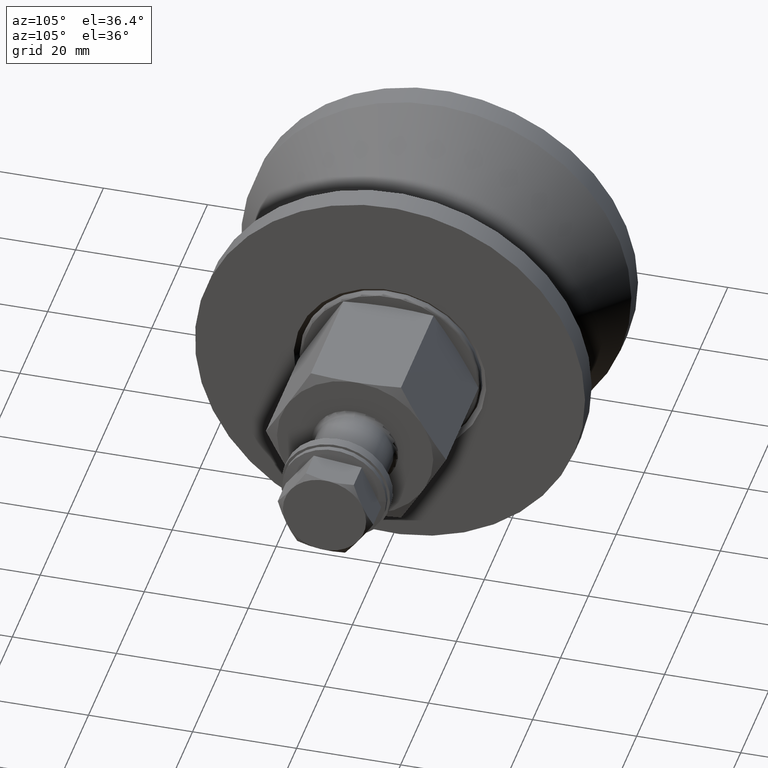
[diagram: clean part render]
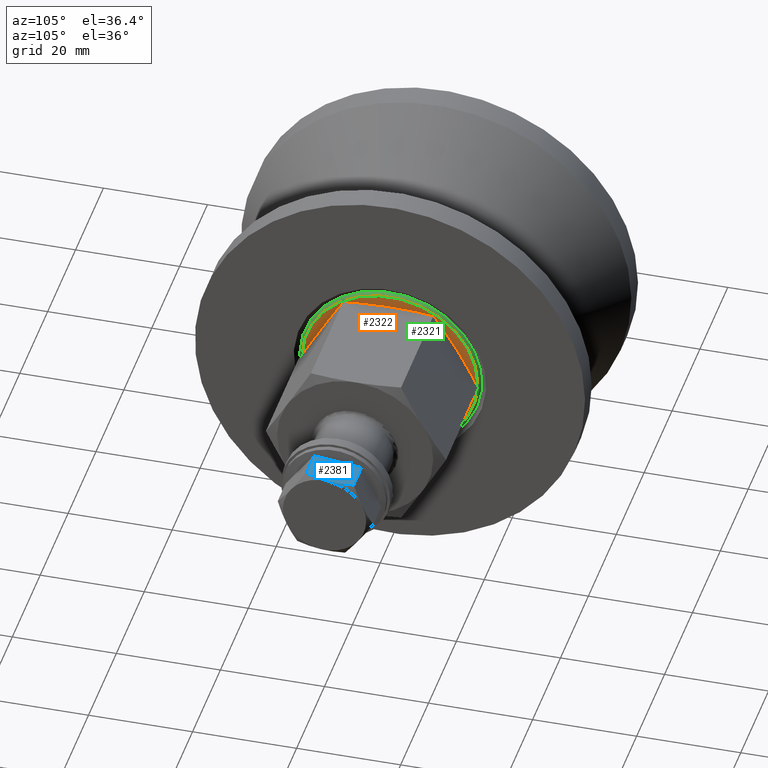
[diagram: same view with three faces highlighted in distinct colors, each labeled with its STEP entity id]
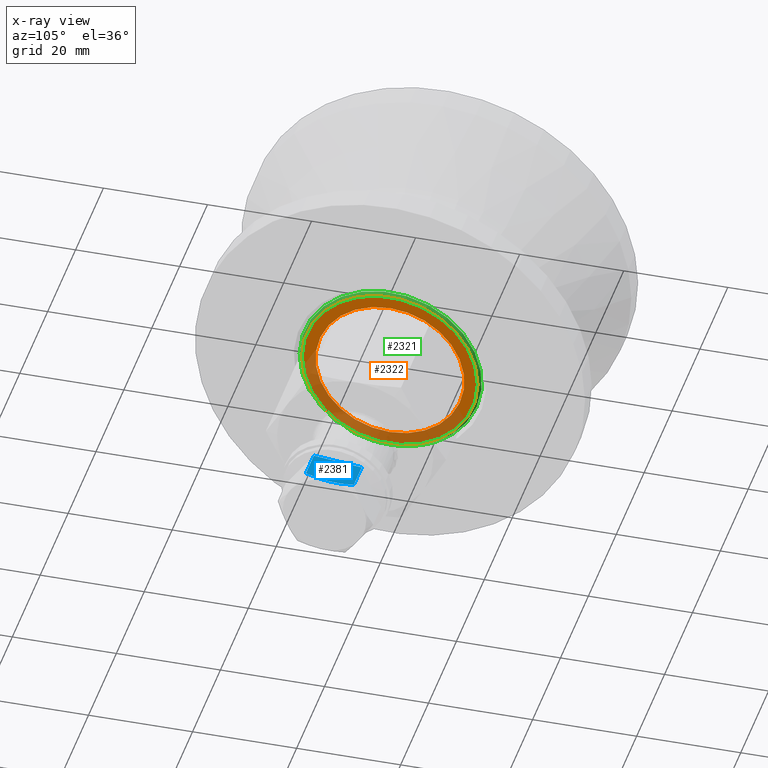
[diagram: x-ray of the same camera — body ghosted, the three highlighted faces saturated]
A machine part, auxiliary view with three faces highlighted in distinct colors.
The next image is the same camera in x-ray (body ghosted, the three faces saturated) — at least one of them is partly hidden behind the body in this view.
Their STEP definitions:

[orange] entity #2322 — the highlighted planar face has unit normal (1, -0, -0).
#246=FACE_BOUND('',#728,.T.);
#288=PLANE('',#2771);
#577=FACE_OUTER_BOUND('',#727,.T.);
#727=EDGE_LOOP('',(#1847));
#728=EDGE_LOOP('',(#1848));
#900=CIRCLE('',#2769,16.9);
#902=CIRCLE('',#2772,14.3);
#1075=VERTEX_POINT('',#4006);
#1076=VERTEX_POINT('',#4010);
#1357=EDGE_CURVE('',#1075,#1075,#900,.T.);
#1359=EDGE_CURVE('',#1076,#1076,#902,.T.);
#1847=ORIENTED_EDGE('',*,*,#1357,.F.);
#1848=ORIENTED_EDGE('',*,*,#1359,.T.);
#2322=ADVANCED_FACE('',(#577,#246),#288,.T.);
#2769=AXIS2_PLACEMENT_3D('',#4007,#3274,#3275);
#2771=AXIS2_PLACEMENT_3D('',#4009,#3278,#3279);
#2772=AXIS2_PLACEMENT_3D('',#4011,#3280,#3281);
#3274=DIRECTION('center_axis',(0.,0.,-1.));
#3275=DIRECTION('ref_axis',(-1.22464679914735E-16,-1.,0.));
#3278=DIRECTION('center_axis',(0.,0.,1.));
#3279=DIRECTION('ref_axis',(1.,0.,0.));
#3280=DIRECTION('center_axis',(0.,0.,-1.));
#3281=DIRECTION('ref_axis',(0.,1.,1.94020717204551E-16));
#4006=CARTESIAN_POINT('',(-16.9,-2.06965309055903E-15,11.));
#4007=CARTESIAN_POINT('Origin',(0.,0.,11.));
#4009=CARTESIAN_POINT('Origin',(0.,12.5,11.));
#4010=CARTESIAN_POINT('',(1.75124492278071E-15,-14.3,11.));
#4011=CARTESIAN_POINT('Origin',(0.,0.,11.));

[blue] entity #2381 — the highlighted planar face has unit normal (0, 0.1044, 0.9945).
#182=(
BOUNDED_CURVE()
B_SPLINE_CURVE(2,(#5092,#5093,#5094),.UNSPECIFIED.,.F.,.F.)
B_SPLINE_CURVE_WITH_KNOTS((3,3),(0.489016619645029,0.960077614566929),
 .UNSPECIFIED.)
CURVE()
GEOMETRIC_REPRESENTATION_ITEM()
RATIONAL_B_SPLINE_CURVE((1.,1.03945329882668,1.00289727833109))
REPRESENTATION_ITEM('')
);
#192=(
BOUNDED_CURVE()
B_SPLINE_CURVE(2,(#5142,#5143,#5144),.UNSPECIFIED.,.F.,.F.)
B_SPLINE_CURVE_WITH_KNOTS((3,3),(0.017918305379031,0.489016619645029),
 .UNSPECIFIED.)
CURVE()
GEOMETRIC_REPRESENTATION_ITEM()
RATIONAL_B_SPLINE_CURVE((1.00289148562447,1.03945642447547,1.))
REPRESENTATION_ITEM('')
);
#305=PLANE('',#2898);
#381=LINE('',#5072,#469);
#390=LINE('',#5151,#478);
#391=LINE('',#5153,#479);
#469=VECTOR('',#3522,10.);
#478=VECTOR('',#3567,10.);
#479=VECTOR('',#3570,10.);
#636=FACE_OUTER_BOUND('',#806,.T.);
#806=EDGE_LOOP('',(#2186,#2187,#2188,#2189,#2190));
#1182=VERTEX_POINT('',#5068);
#1184=VERTEX_POINT('',#5071);
#1189=VERTEX_POINT('',#5086);
#1191=VERTEX_POINT('',#5091);
#1200=VERTEX_POINT('',#5137);
#1506=EDGE_CURVE('',#1184,#1182,#381,.T.);
#1514=EDGE_CURVE('',#1191,#1189,#182,.T.);
#1530=EDGE_CURVE('',#1200,#1191,#192,.T.);
#1534=EDGE_CURVE('',#1182,#1200,#390,.T.);
#1535=EDGE_CURVE('',#1184,#1189,#391,.T.);
#2186=ORIENTED_EDGE('',*,*,#1514,.T.);
#2187=ORIENTED_EDGE('',*,*,#1535,.F.);
#2188=ORIENTED_EDGE('',*,*,#1506,.T.);
#2189=ORIENTED_EDGE('',*,*,#1534,.T.);
#2190=ORIENTED_EDGE('',*,*,#1530,.T.);
#2381=ADVANCED_FACE('',(#636),#305,.T.);
#2898=AXIS2_PLACEMENT_3D('',#5152,#3568,#3569);
#3522=DIRECTION('',(-0.86603810567665,-0.499977999031958,0.));
#3567=DIRECTION('',(0.,0.,1.));
#3568=DIRECTION('center_axis',(-0.499977999031958,0.866038105676649,0.));
#3569=DIRECTION('ref_axis',(0.,0.,1.));
#3570=DIRECTION('',(0.,0.,1.));
#5068=CARTESIAN_POINT('',(-8.,4.61893764434179,0.));
#5071=CARTESIAN_POINT('',(-5.55111512312578E-15,9.2374688221709,0.));
#5072=CARTESIAN_POINT('',(-5.55111512312578E-15,9.2374688221709,0.));
#5086=CARTESIAN_POINT('',(-5.55111512312578E-15,9.2374688221709,5.68554704240587));
#5091=CARTESIAN_POINT('',(-3.99982399225566,6.92830484541319,6.4));
#5092=CARTESIAN_POINT('Ctrl Pts',(-3.99982399225566,6.92830484541319,6.4));
#5093=CARTESIAN_POINT('Ctrl Pts',(-2.14348462665163,7.99999999999741,6.4));
#5094=CARTESIAN_POINT('Ctrl Pts',(-5.55111512312578E-15,9.2374688221709,
5.68554704240587));
#5137=CARTESIAN_POINT('',(-8.,4.61893764434179,5.68542970692134));
#5142=CARTESIAN_POINT('Ctrl Pts',(-8.,4.61893764434179,5.68542970692134));
#5143=CARTESIAN_POINT('Ctrl Pts',(-5.85630484205982,5.8565280096803,6.4));
#5144=CARTESIAN_POINT('Ctrl Pts',(-3.99982399225566,6.92830484541319,6.4));
#5151=CARTESIAN_POINT('',(-8.,4.61893764434179,0.));
#5152=CARTESIAN_POINT('Origin',(-8.,4.61893764434179,0.));
#5153=CARTESIAN_POINT('',(-5.55111512312578E-15,9.2374688221709,0.));

[green] entity #2321 — the highlighted toroidal blend (fillet) surface has major radius 16.9 mm and minor (blend) radius 0.6 mm.
#576=FACE_OUTER_BOUND('',#726,.T.);
#726=EDGE_LOOP('',(#1842,#1843,#1844,#1845,#1846));
#897=CIRCLE('',#2764,17.5);
#898=CIRCLE('',#2765,17.5);
#900=CIRCLE('',#2769,16.9);
#901=CIRCLE('',#2770,0.6);
#1072=VERTEX_POINT('',#3997);
#1073=VERTEX_POINT('',#3998);
#1075=VERTEX_POINT('',#4006);
#1353=EDGE_CURVE('',#1072,#1073,#897,.T.);
#1355=EDGE_CURVE('',#1073,#1072,#898,.T.);
#1357=EDGE_CURVE('',#1075,#1075,#900,.T.);
#1358=EDGE_CURVE('',#1075,#1073,#901,.T.);
#1842=ORIENTED_EDGE('',*,*,#1357,.T.);
#1843=ORIENTED_EDGE('',*,*,#1358,.T.);
#1844=ORIENTED_EDGE('',*,*,#1355,.T.);
#1845=ORIENTED_EDGE('',*,*,#1353,.T.);
#1846=ORIENTED_EDGE('',*,*,#1358,.F.);
#2241=TOROIDAL_SURFACE('',#2768,16.9,0.6);
#2321=ADVANCED_FACE('',(#576),#2241,.T.);
#2764=AXIS2_PLACEMENT_3D('',#3999,#3263,#3264);
#2765=AXIS2_PLACEMENT_3D('',#4001,#3266,#3267);
#2768=AXIS2_PLACEMENT_3D('',#4005,#3272,#3273);
#2769=AXIS2_PLACEMENT_3D('',#4007,#3274,#3275);
#2770=AXIS2_PLACEMENT_3D('',#4008,#3276,#3277);
#3263=DIRECTION('center_axis',(0.,0.,1.));
#3264=DIRECTION('ref_axis',(-1.22464679914735E-16,-1.,0.));
#3266=DIRECTION('center_axis',(0.,0.,1.));
#3267=DIRECTION('ref_axis',(-1.22464679914735E-16,-1.,0.));
#3272=DIRECTION('center_axis',(0.,0.,1.));
#3273=DIRECTION('ref_axis',(1.,0.,0.));
#3274=DIRECTION('center_axis',(0.,0.,-1.));
#3275=DIRECTION('ref_axis',(-1.22464679914735E-16,-1.,0.));
#3276=DIRECTION('center_axis',(1.22464679914735E-16,-1.,0.));
#3277=DIRECTION('ref_axis',(-1.,-1.22464679914735E-16,0.));
#3997=CARTESIAN_POINT('',(2.14313189850787E-15,-17.5,10.4));
#3998=CARTESIAN_POINT('',(-17.5,-2.14313189850787E-15,10.4));
#3999=CARTESIAN_POINT('Origin',(0.,0.,10.4));
#4001=CARTESIAN_POINT('Origin',(0.,0.,10.4));
#4005=CARTESIAN_POINT('Origin',(0.,0.,10.4));
#4006=CARTESIAN_POINT('',(-16.9,-2.06965309055903E-15,11.));
#4007=CARTESIAN_POINT('Origin',(0.,0.,11.));
#4008=CARTESIAN_POINT('Origin',(-16.9,-2.06965309055903E-15,10.4));